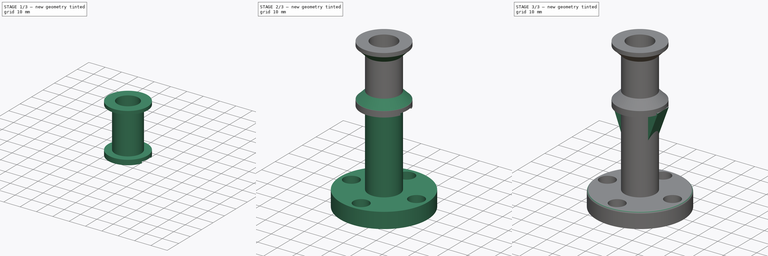
[diagram: build sequence overview — one tinted view per stage of 3, left to right]
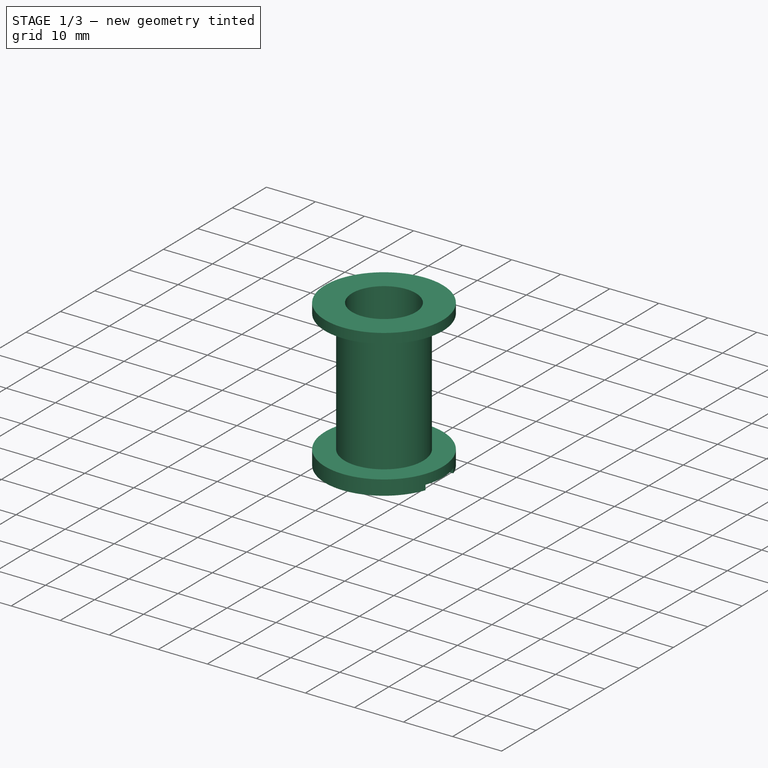
[diagram: stage 1 of 3 — iso view after this stage's code; geometry added in this stage tinted green]
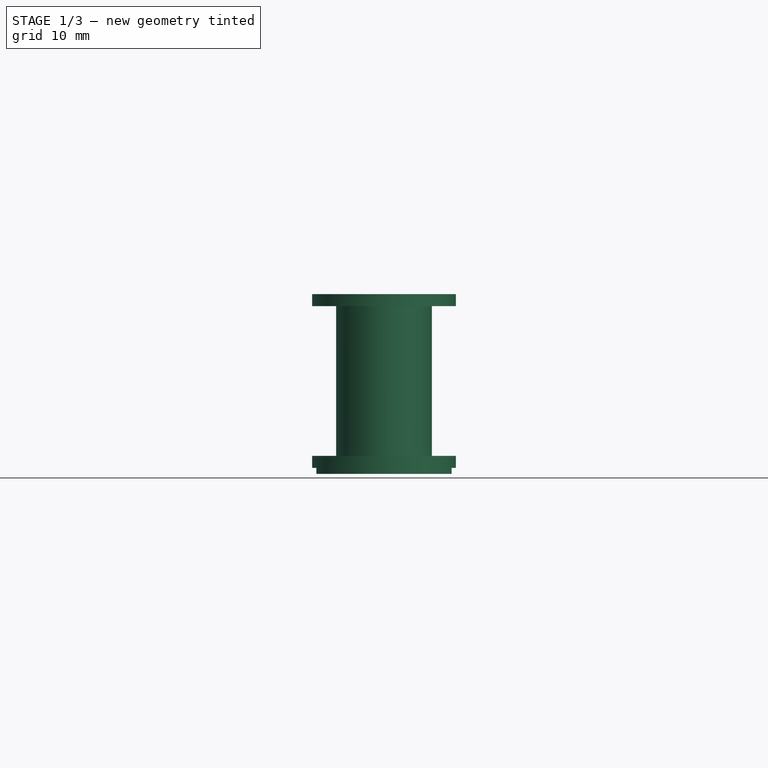
[diagram: stage 1 of 3 — front view after this stage's code; geometry added in this stage tinted green]
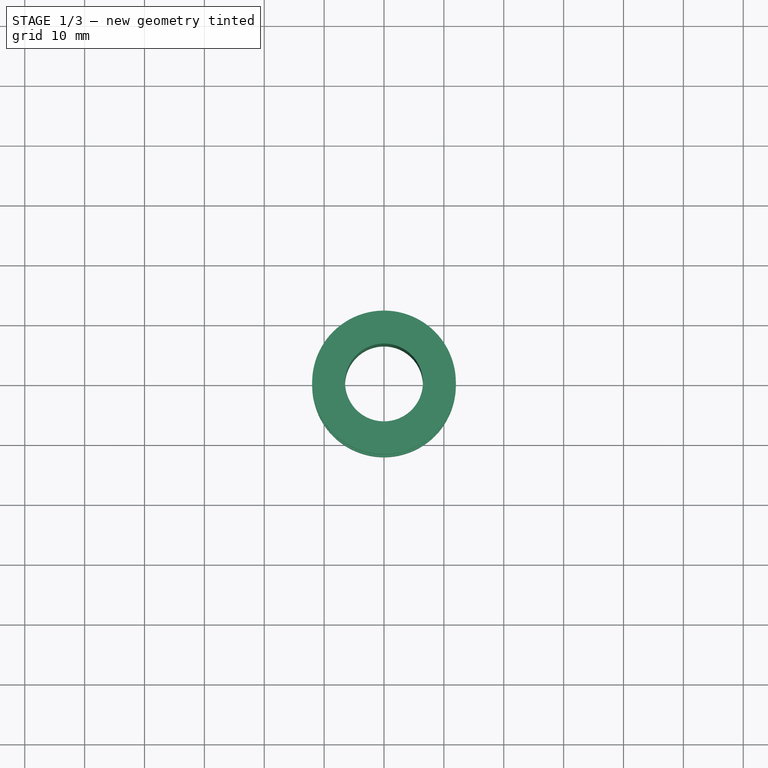
[diagram: stage 1 of 3 — top view after this stage's code; geometry added in this stage tinted green]
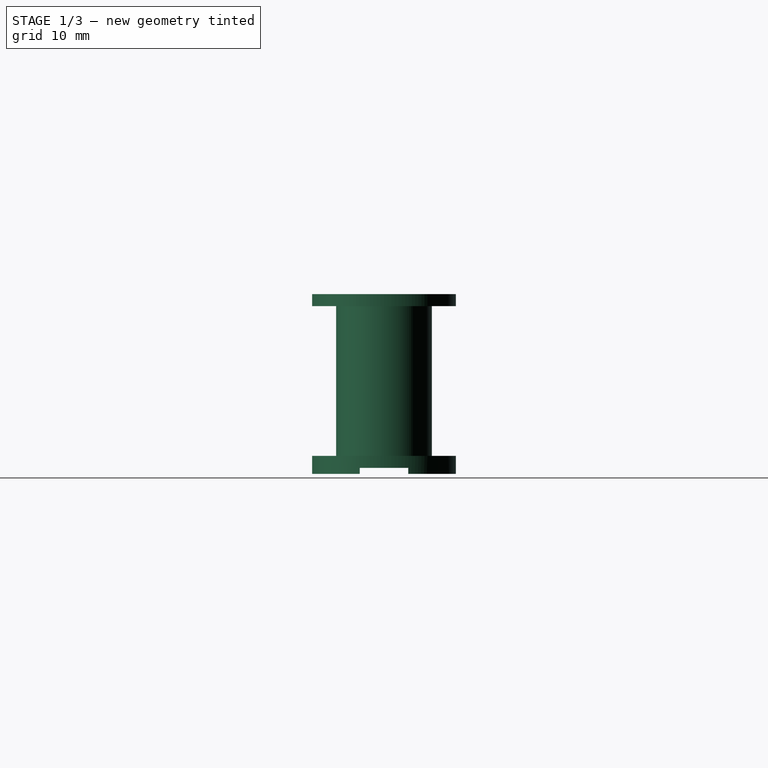
[diagram: stage 1 of 3 — right view after this stage's code; geometry added in this stage tinted green]
FCSTD DOCUMENT  (FreeCAD 1.1R20251125 (Git shallow))
Label: Spulenhalter_Klein
License: All rights reserved
LicenseURL: https://en.wikipedia.org/wiki/All_rights_reserved
objects: Sketcher::SketchObject×5, PartDesign::Revolution×2, App::Point×2, PartDesign::Body×2, PartDesign::Hole×1, PartDesign::Fillet×1, PartDesign::Pad×1, PartDesign::Pocket×1, PartDesign::Chamfer×1
note: 33 computed .brp shape members not serialized (recipe doc carries the construction recipe); baked Part::Feature solids carry a one-line shape summary decoded from their .brp

FEATURE [PartDesign::Body] Body  label="Holder"
  AllowCompound = false
  Group = -> [Sketch,Revolution,Sketch001,Hole,Fillet,Sketch003,Pad]
  Origin = -> Origin
  Tip = -> Pad
FEATURE [App::Point] Origin003  label="Ursprung001"
  Role = Origin
FEATURE [Sketcher::SketchObject] Sketch004
  ArcFitTolerance = 1e-06
  AttachmentSupport = -> [Origin002]
  ExternalTypes = [0]
  FullyConstrained = true
  MakeInternals = false
  MapMode = 5
  Placement = pos=(0,0,0) rot=(1,0,0;1.5708rad)
  sketch-geometry (8):
    g0: LineSegment StartX=6.5 StartY=77 StartZ=0 EndX=12 EndY=77 EndZ=0
    g1: LineSegment StartX=12 StartY=77 StartZ=0 EndX=12 EndY=75 EndZ=0
    g2: LineSegment StartX=12 StartY=75 StartZ=0 EndX=8 EndY=75 EndZ=0
    g3: LineSegment StartX=8 StartY=75 StartZ=0 EndX=8 EndY=50 EndZ=0
    g4: LineSegment StartX=8 StartY=50 StartZ=0 EndX=12 EndY=50 EndZ=0
    g5: LineSegment StartX=12 StartY=50 StartZ=0 EndX=12 EndY=47 EndZ=0
    g6: LineSegment StartX=12 StartY=47 StartZ=0 EndX=6.5 EndY=47 EndZ=0
    g7: LineSegment StartX=6.5 StartY=77 StartZ=0 EndX=6.5 EndY=47 EndZ=0
  constraints (24):
    c: Horizontal(g0)
    c: Coincident(g1,g0)
    c: Vertical(g1)
    c: Horizontal(g2)
    c: Coincident(g3,g2)
    c: Vertical(g3)
    c: Horizontal(g4)
    c: Coincident(g5,g4)
    c: Vertical(g5)
    c: Coincident(g6,g5)
    c: Horizontal(g6)
    c: DistanceY(g1,g1) = 2
    c: DistanceY(g5,g5) = 3
    c: Distance(g0,g6) = 30
    c: Coincident(g1,g2)
    c: Coincident(g3,g4)
    c: Distance(g-2,g3) = 8
    c: Coincident(g7,g0)
    c: Coincident(g7,g6)
    c: Vertical(g7)
    c: Distance(g-2,g7) = 6.5
    c: Distance(g-2,g1) = 12
    c: Vertical(g4,g1)
    c: Distance(g-1,g6) = 47
FEATURE [PartDesign::Revolution] Revolution001
  Angle = 360
  Angle2 = 0
  Axis = (0,2e-16,1)
  Base = (0,0,0)
  Profile = -> Sketch004
  ReferenceAxis = -> Sketch004 [V_Axis]
  Refine = true
  Reversed = true
  Suppressed = false
  Type = 0
FEATURE [Sketcher::SketchObject] Sketch005
  ArcFitTolerance = 1e-06
  AttachmentSupport = -> [Revolution001]
  ExternalTypes = [0]
  FullyConstrained = true
  MakeInternals = false
  MapMode = 5
  Placement = pos=(0,1.04e-14,47) rot=(1,0,0;3.14159rad)
  sketch-geometry (8):
    g0: ArcOfCircle CenterX=0 CenterY=0 CenterZ=0 NormalX=0 NormalY=0 NormalZ=1 AngleXU=0 Radius=8.1 StartAngle=0.523599 EndAngle=2.61799
    g1: LineSegment StartX=-12 StartY=4.05 StartZ=0 EndX=-12 EndY=-4.05 EndZ=0
    g2: LineSegment StartX=-12 StartY=-4.05 StartZ=0 EndX=-7.01481 EndY=-4.05 EndZ=0
    g3: LineSegment StartX=12 StartY=-4.05 StartZ=0 EndX=12 EndY=4.05 EndZ=0
    g4: LineSegment StartX=12 StartY=4.05 StartZ=0 EndX=7.01481 EndY=4.05 EndZ=0
    g5: LineSegment StartX=-7.01481 StartY=4.05 StartZ=0 EndX=-12 EndY=4.05 EndZ=0
    g6: ArcOfCircle CenterX=0 CenterY=0 CenterZ=0 NormalX=0 NormalY=0 NormalZ=1 AngleXU=0 Radius=8.1 StartAngle=3.66519 EndAngle=5.75959
    g7: LineSegment StartX=7.01481 StartY=-4.05 StartZ=0 EndX=12 EndY=-4.05 EndZ=0
  constraints (22):
    c: Coincident(g0,g-1)
    c: Coincident(g1,g2)
    c: Coincident(g7,g3)
    c: Coincident(g3,g4)
    c: Coincident(g5,g1)
    c: Vertical(g1)
    c: Horizontal(g4)
    c: Horizontal(g5)
    c: Coincident(g4,g0)
    c: Diameter(g0) = 16.2
    c: Coincident(g5,g0)
    c: Coincident(g0,g6)
    c: Horizontal(g2)
    c: Horizontal(g7)
    c: Coincident(g6,g7)
    c: Coincident(g6,g2)
    c: Symmetric(g1,g3,g0)
    c: Symmetric(g1,g3,g0)
    c: Equal(g6,g0)
    c: Horizontal(g0,g0)
    c: DistanceY(g1,g1) = 8.1
    c: Distance(g3,g1) = 24
FEATURE [PartDesign::Pocket] Pocket
  BaseFeature = -> Revolution001
  Direction = (0,0,1)
  Length = 1
  Length2 = 5
  Profile = -> Sketch005
  ReferenceAxis = -> Sketch005 [N_Axis]
  Refine = true
  SideType = 0
  Suppressed = false
  Type = 0
  Type2 = 0
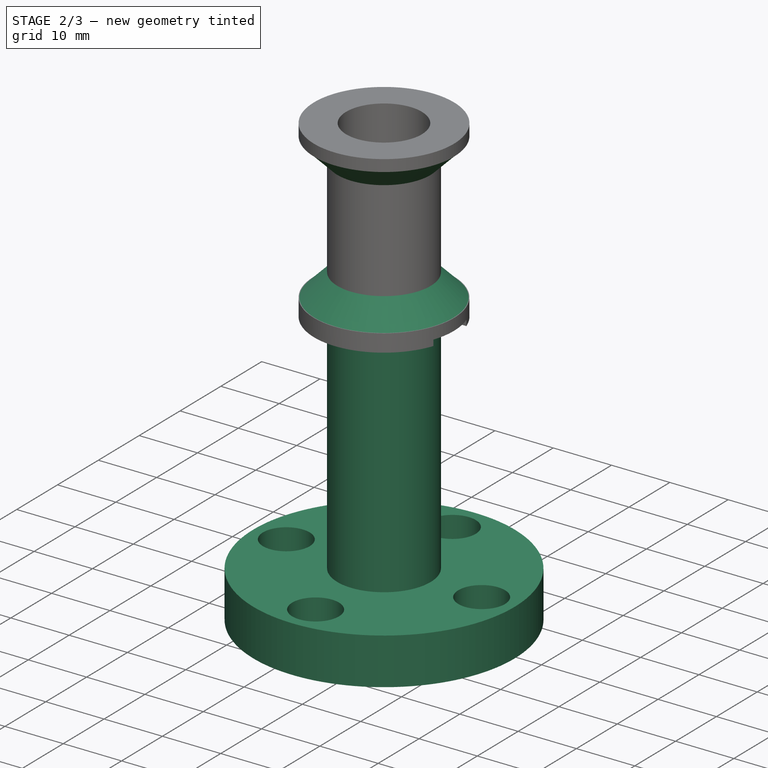
[diagram: stage 2 of 3 — iso view after this stage's code; geometry added in this stage tinted green]
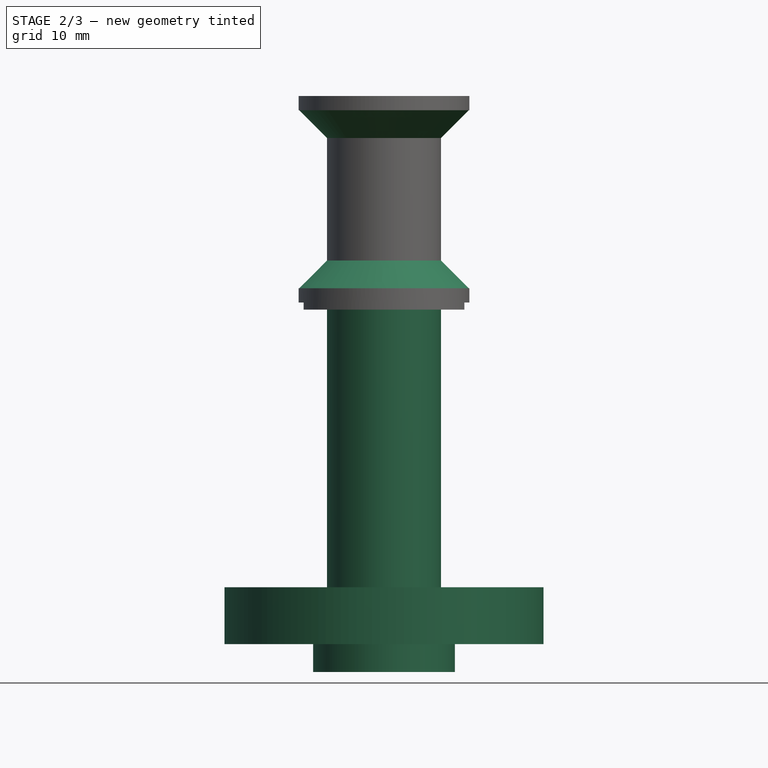
[diagram: stage 2 of 3 — front view after this stage's code; geometry added in this stage tinted green]
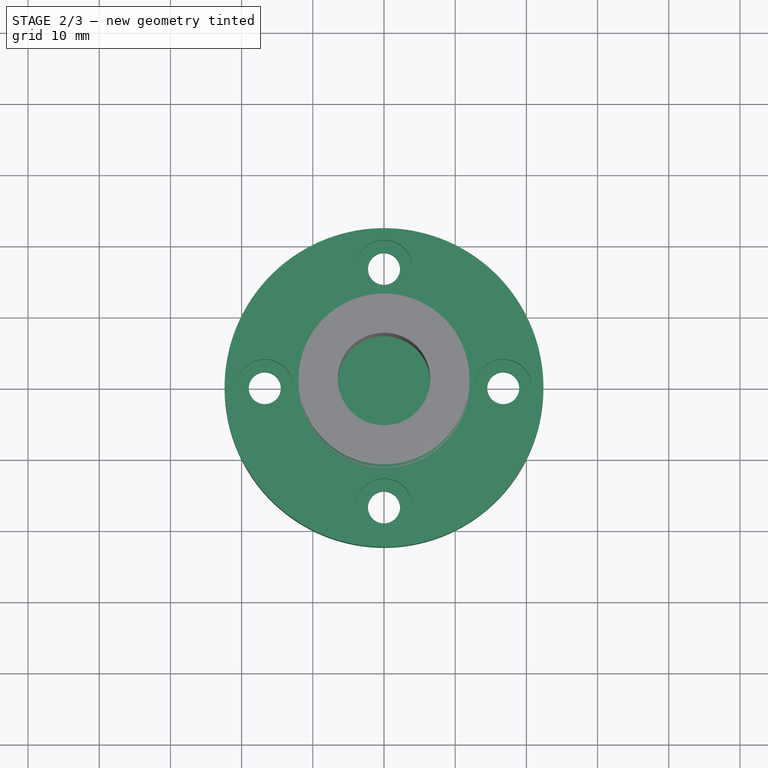
[diagram: stage 2 of 3 — top view after this stage's code; geometry added in this stage tinted green]
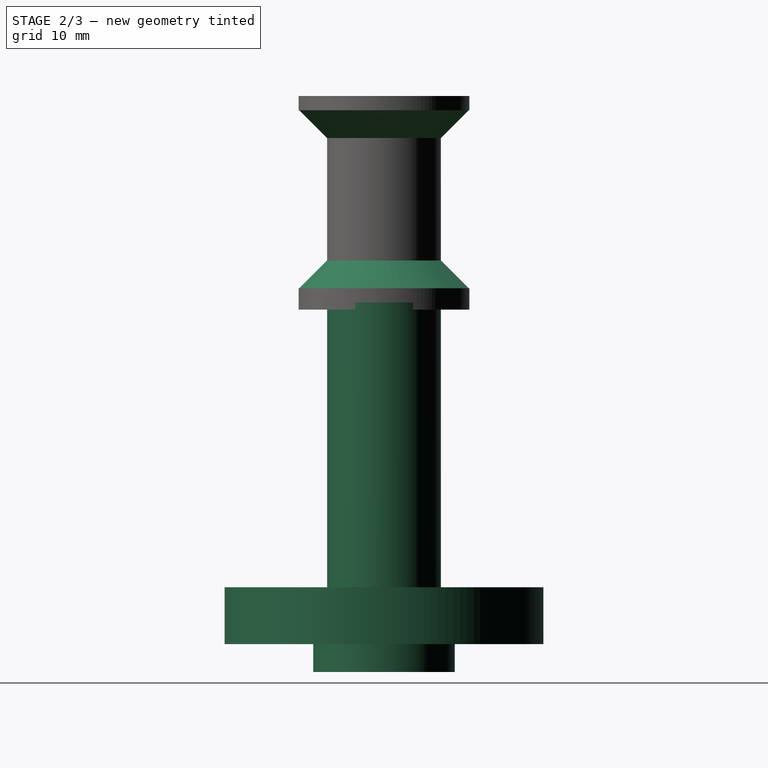
[diagram: stage 2 of 3 — right view after this stage's code; geometry added in this stage tinted green]
FEATURE [Sketcher::SketchObject] Sketch
  ArcFitTolerance = 1e-06
  AttachmentSupport = -> [XZ_Plane]
  ExternalTypes = [0]
  FullyConstrained = true
  MakeInternals = false
  MapMode = 5
  Placement = pos=(0,0,0) rot=(1,0,0;1.5708rad)
  sketch-geometry (8):
    g0: LineSegment StartX=0 StartY=48 StartZ=0 EndX=8 EndY=48 EndZ=0
    g1: LineSegment StartX=8 StartY=48 StartZ=0 EndX=8 EndY=8 EndZ=0
    g2: LineSegment StartX=8 StartY=8 StartZ=0 EndX=22.4 EndY=8 EndZ=0
    g3: LineSegment StartX=22.4 StartY=8 StartZ=0 EndX=22.4 EndY=0 EndZ=0
    g4: LineSegment StartX=22.4 StartY=0 StartZ=0 EndX=9.95 EndY=0 EndZ=0
    g5: LineSegment StartX=9.95 StartY=0 StartZ=0 EndX=9.95 EndY=-3.9 EndZ=0
    g6: LineSegment StartX=9.95 StartY=-3.9 StartZ=0 EndX=0 EndY=-3.9 EndZ=0
    g7: LineSegment StartX=0 StartY=-3.9 StartZ=0 EndX=0 EndY=48 EndZ=0
  constraints (24):
    c: PointOnObject(g0,g-2)
    c: Horizontal(g0)
    c: Coincident(g1,g0)
    c: Vertical(g1)
    c: Coincident(g2,g1)
    c: Horizontal(g2)
    c: Coincident(g3,g2)
    c: PointOnObject(g3,g-1)
    c: Vertical(g3)
    c: Coincident(g4,g3)
    c: Horizontal(g4)
    c: Vertical(g5)
    c: Coincident(g6,g5)
    c: PointOnObject(g6,g-2)
    c: Horizontal(g6)
    c: Coincident(g7,g6)
    c: Coincident(g7,g0)
    c: DistanceX(g0,g0) = 8
    c: Distance(g3,g7) = 22.4
    c: Distance(g7,g5) = 9.95
    c: Coincident(g4,g5)
    c: DistanceY(g5,g5) = 3.9
    c: DistanceY(g3,g3) = 8
    c: Distance(g2,g0) = 40
FEATURE [PartDesign::Revolution] Revolution
  Angle = 360
  Angle2 = 60
  Axis = (0,2e-16,1)
  Base = (0,0,0)
  Placement = pos=(0,0,0) rot=(1,0,0;1.5708rad)
  Profile = -> Sketch
  ReferenceAxis = -> Sketch [V_Axis]
  Refine = true
  Reversed = true
  Suppressed = false
  Type = 0
FEATURE [Sketcher::SketchObject] Sketch001
  ArcFitTolerance = 1e-06
  AttachmentSupport = -> [Revolution]
  ExternalTypes = [0]
  FullyConstrained = true
  MakeInternals = false
  MapMode = 5
  Placement = pos=(0,1.8e-15,8) rot=(0,0,1;3.14159rad)
  sketch-geometry (7):
    g0: Circle [constr] CenterX=0 CenterY=0 CenterZ=0 NormalX=0 NormalY=0 NormalZ=1 AngleXU=0 Radius=16.75
    g1: GeomPoint X=-16.75 Y=0 Z=0
    g2: GeomPoint X=0 Y=16.75 Z=0
    g3: GeomPoint X=16.75 Y=1e-16 Z=0
    g4: GeomPoint X=0 Y=-16.75 Z=0
    g5: LineSegment [constr] StartX=-16.75 StartY=0 StartZ=0 EndX=0 EndY=0 EndZ=0
    g6: LineSegment [constr] StartX=0 StartY=0 StartZ=0 EndX=0 EndY=16.75 EndZ=0
  constraints (12):
    c: Coincident(g0,g-1)
    c: Diameter(g0) = 33.5
    c: PointOnObject(g1,g0)
    c: PointOnObject(g2,g0)
    c: Symmetric(g1,g3,g0)
    c: Symmetric(g2,g4,g0)
    c: Coincident(g5,g1)
    c: Coincident(g5,g0)
    c: Coincident(g6,g0)
    c: Coincident(g6,g2)
    c: Perpendicular(g6,g5)
    c: PointOnObject(g1,g-1)
FEATURE [PartDesign::Hole] Hole
  BaseFeature = -> Revolution
  BaseProfileType = 1
  CustomThreadClearance = 0
  Depth = 165.363
  DepthType = 1
  Diameter = 4.5
  DrillForDepth = false
  DrillPoint = 1
  DrillPointAngle = 118
  HoleCutCountersinkAngle = 90
  HoleCutCustomValues = false
  HoleCutDepth = 4.4
  HoleCutDiameter = 8
  HoleCutType = 1
  ModelThread = false
  Placement = pos=(0,0,0) rot=(1,0,0;1.5708rad)
  Profile = -> Sketch001
  Refine = true
  Suppressed = false
  Tapered = false
  TaperedAngle = 90
  ThreadClass = 0
  ThreadDepth = 165.363
  ThreadDepthType = 0
  ThreadDiameter = 4
  ThreadDirection = 0
  ThreadFit = 0
  ThreadSize = 11
  ThreadType = 1
  Threaded = false
  UseCustomThreadClearance = false
FEATURE [PartDesign::Chamfer] Chamfer
  Angle = 45
  Base = -> Pocket [Edge17,Edge36]
  BaseFeature = -> Pocket
  ChamferType = 0
  FlipDirection = false
  Refine = true
  Size = 3.9
  Size2 = 1
  SupportTransform = false
  Suppressed = false
  UseAllEdges = false
FEATURE [PartDesign::Body] Body001  label="Spool"
  AllowCompound = true
  Group = -> [Sketch004,Revolution001,Sketch005,Pocket,Chamfer]
  Origin = -> Origin002
  Tip = -> Chamfer
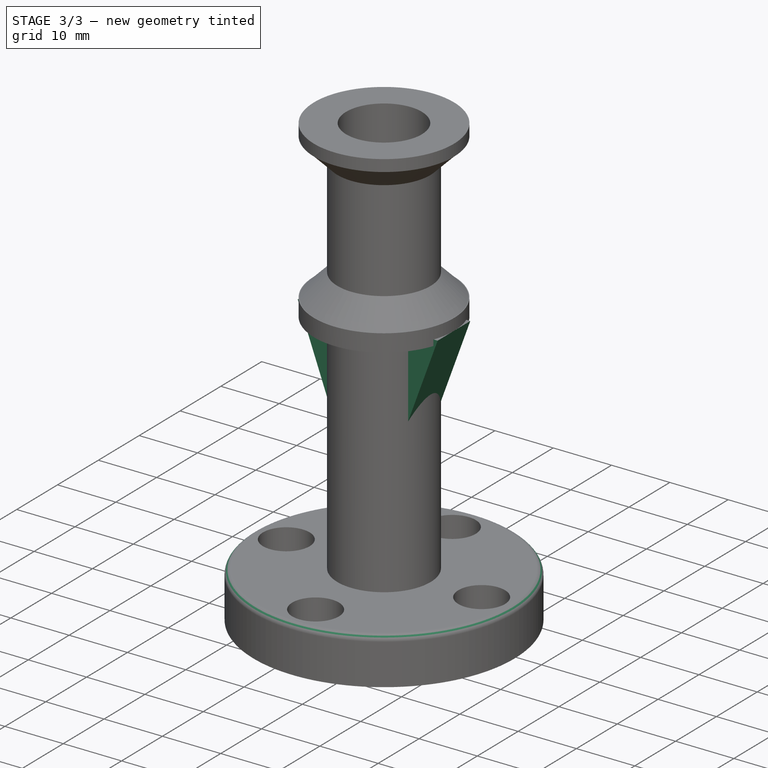
[diagram: stage 3 of 3 — iso view after this stage's code; geometry added in this stage tinted green]
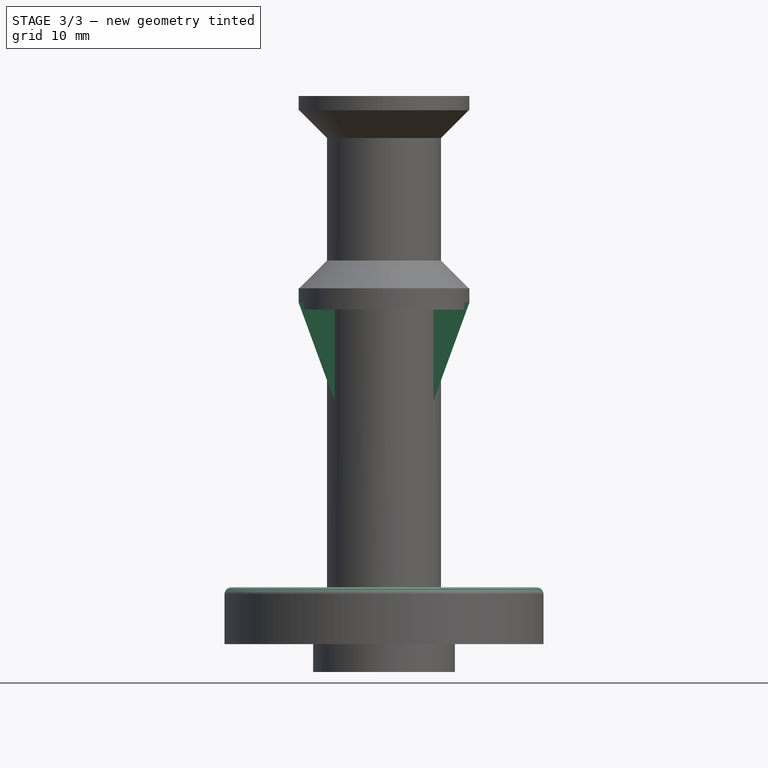
[diagram: stage 3 of 3 — front view after this stage's code; geometry added in this stage tinted green]
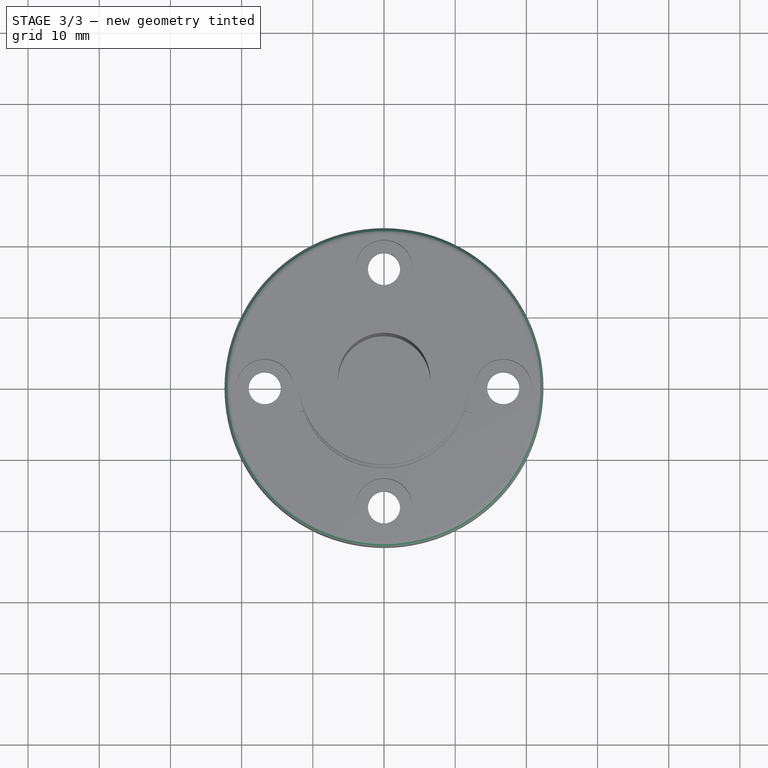
[diagram: stage 3 of 3 — top view after this stage's code; geometry added in this stage tinted green]
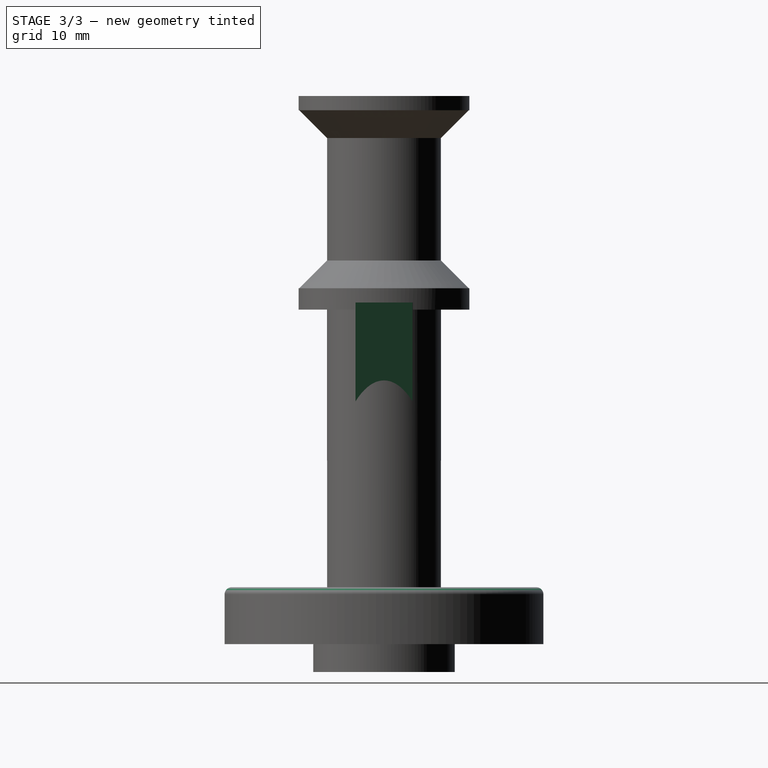
[diagram: stage 3 of 3 — right view after this stage's code; geometry added in this stage tinted green]
FEATURE [App::Point] Origin001  label="Ursprung"
  Role = Origin
FEATURE [PartDesign::Fillet] Fillet
  Base = -> Hole [Edge4]
  BaseFeature = -> Hole
  Placement = pos=(0,0,0) rot=(1,0,0;1.5708rad)
  Radius = 1
  Refine = true
  SupportTransform = false
  Suppressed = false
  UseAllEdges = false
FEATURE [Sketcher::SketchObject] Sketch003
  ArcFitTolerance = 1e-06
  AttachmentSupport = -> [Origin]
  ExternalGeometry = -> [Fillet]
  ExternalTypes = [0]
  FullyConstrained = false
  MakeInternals = false
  MapMode = 5
  Placement = pos=(0,0,0) rot=(1,0,0;1.5708rad)
  sketch-geometry (6):
    g0: LineSegment StartX=-8 StartY=48 StartZ=0 EndX=-12 EndY=48 EndZ=0
    g1: LineSegment StartX=-12 StartY=48 StartZ=0 EndX=-6.09992 EndY=31.8514 EndZ=0
    g2: LineSegment StartX=6.09992 StartY=31.8514 StartZ=0 EndX=12 EndY=48 EndZ=0
    g3: LineSegment StartX=8 StartY=48 StartZ=0 EndX=12 EndY=48 EndZ=0
    g4: LineSegment StartX=8 StartY=48 StartZ=0 EndX=-8 EndY=48 EndZ=0
    g5: LineSegment StartX=-6.09992 StartY=31.8514 StartZ=0 EndX=6.09992 EndY=31.8514 EndZ=0
  constraints (14):
    c: Coincident(g0,g-7)
    c: Horizontal(g0)
    c: Coincident(g1,g0)
    c: Coincident(g3,g-7)
    c: Coincident(g3,g2)
    c: Coincident(g4,g3)
    c: Coincident(g4,g0)
    c: Horizontal(g3)
    c: DistanceX(g0,g2) = 24
    c: Equal(g0,g3)
    c: Coincident(g5,g1)
    c: Coincident(g5,g2)
    c: Horizontal(g5)
    c: Equal(g1,g2)
FEATURE [PartDesign::Pad] Pad
  BaseFeature = -> Fillet
  Direction = (0,-1,2e-16)
  Length = 8
  Length2 = 10
  Placement = pos=(0,0,0) rot=(1,0,0;1.5708rad)
  Profile = -> Sketch003
  ReferenceAxis = -> Sketch003 [N_Axis]
  Refine = true
  SideType = 2
  Suppressed = false
  Type = 0
  Type2 = 0
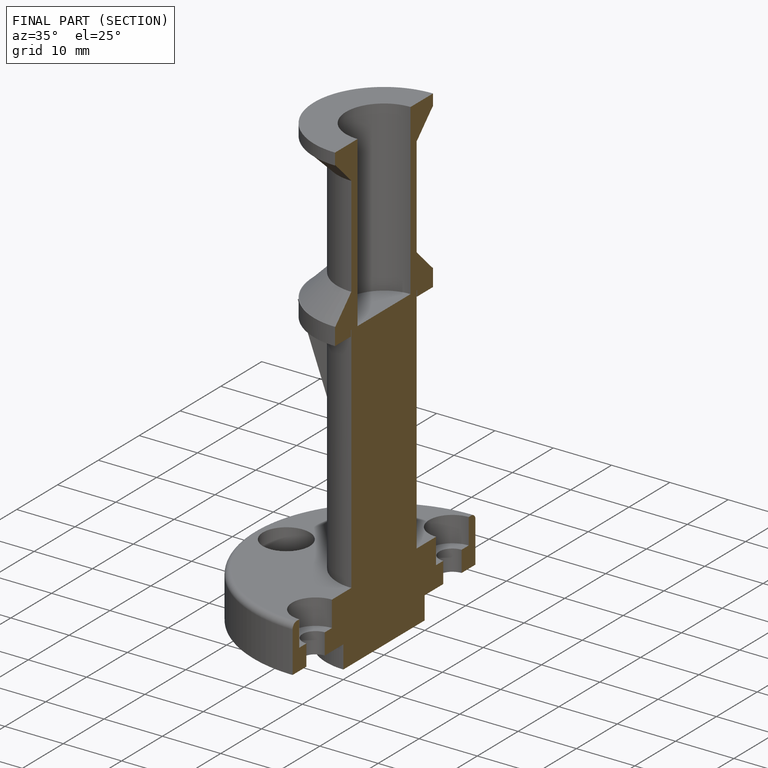
[diagram: finished part — half-section view (interior)]
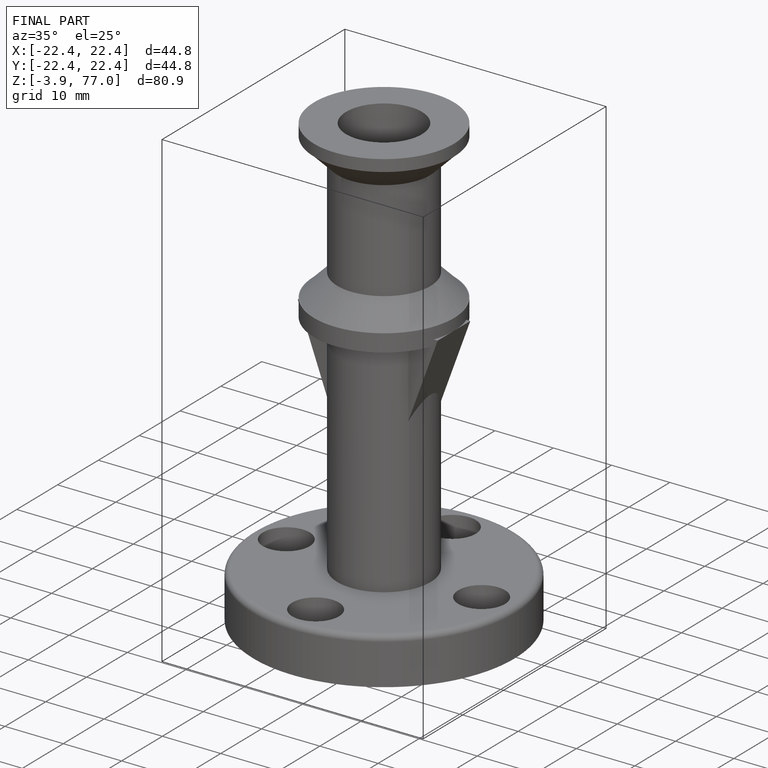
[diagram: finished part — iso view with bounding-box wireframe]
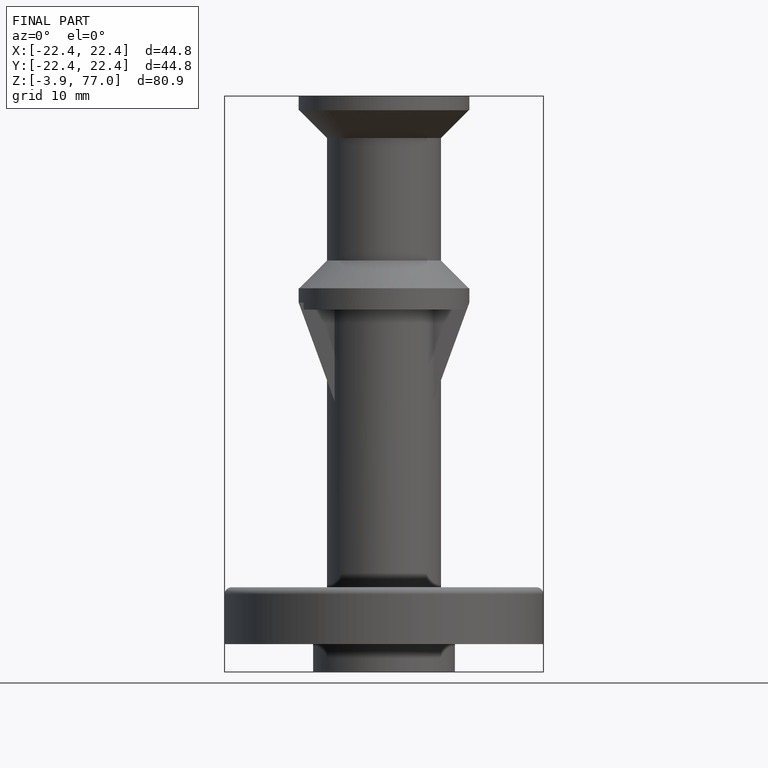
[diagram: finished part — front view with bounding-box wireframe]
